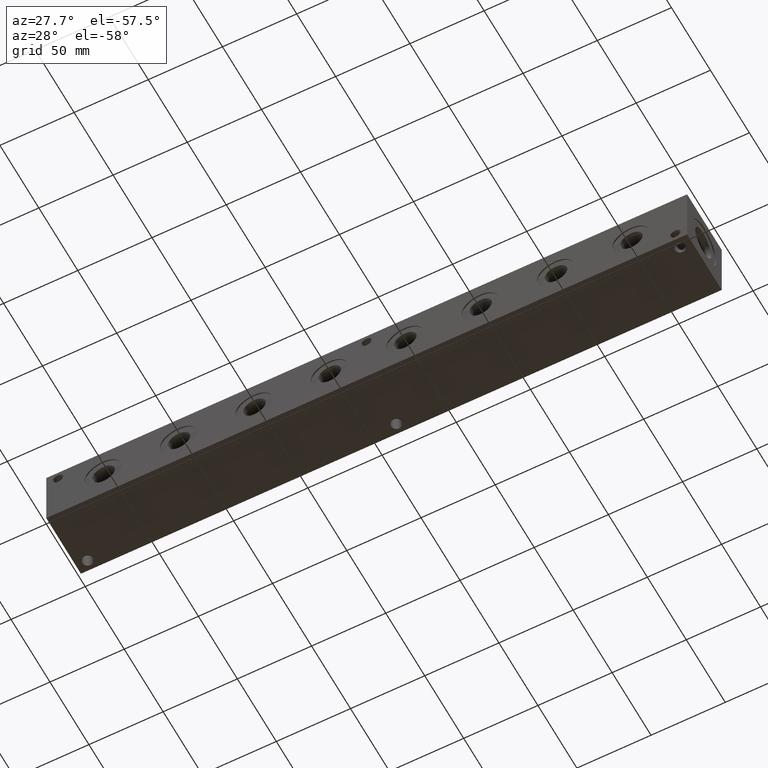
[diagram: clean part render]
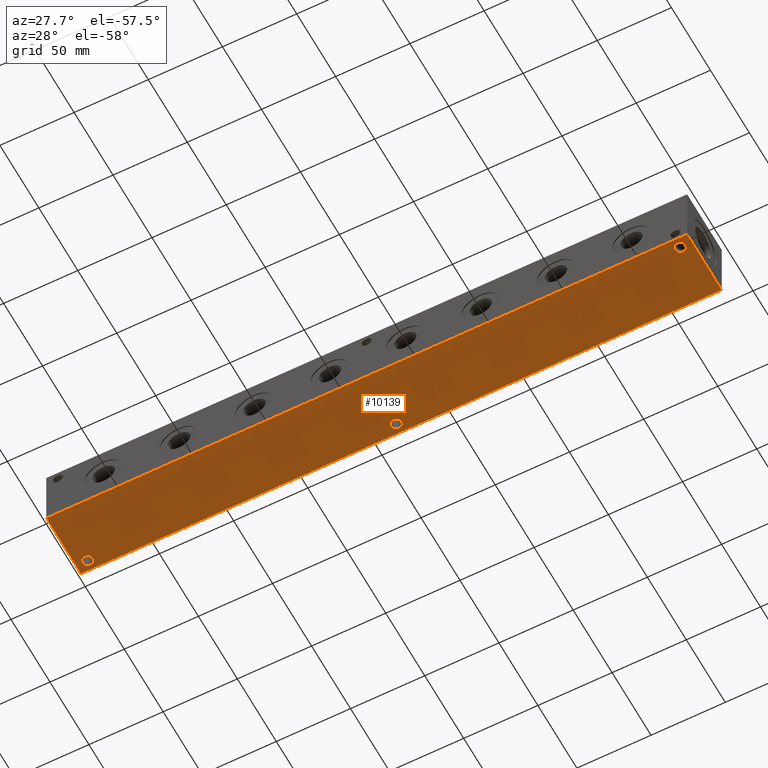
[diagram: same view with one face highlighted and labeled with its STEP entity id]
A machine part, auxiliary view. The second image highlights one B-rep face of the part: STEP entity #10139.
In plain terms, the highlighted planar face has unit normal (0, 0, 1).
Its self-contained STEP definition (entity closure, byte-faithful):
#383=CIRCLE('',#10664,3.5687);
#384=CIRCLE('',#10666,3.5687);
#385=CIRCLE('',#10668,3.5687);
#615=FACE_BOUND('',#1990,.T.);
#616=FACE_BOUND('',#1991,.T.);
#617=FACE_BOUND('',#1992,.T.);
#852=PLANE('',#10896);
#1374=FACE_OUTER_BOUND('',#1989,.T.);
#1989=EDGE_LOOP('',(#9170,#9171,#9172,#9173));
#1990=EDGE_LOOP('',(#9174));
#1991=EDGE_LOOP('',(#9175));
#1992=EDGE_LOOP('',(#9176));
#2757=LINE('',#18188,#3529);
#2760=LINE('',#18193,#3532);
#2762=LINE('',#18197,#3534);
#2764=LINE('',#18200,#3536);
#3529=VECTOR('',#13139,10.);
#3532=VECTOR('',#13144,10.);
#3534=VECTOR('',#13148,10.);
#3536=VECTOR('',#13152,10.);
#4700=VERTEX_POINT('',#17748);
#4701=VERTEX_POINT('',#17752);
#4702=VERTEX_POINT('',#17756);
#4841=VERTEX_POINT('',#18186);
#4842=VERTEX_POINT('',#18187);
#4843=VERTEX_POINT('',#18192);
#4844=VERTEX_POINT('',#18196);
#6074=EDGE_CURVE('',#4700,#4700,#383,.T.);
#6076=EDGE_CURVE('',#4701,#4701,#384,.T.);
#6078=EDGE_CURVE('',#4702,#4702,#385,.T.);
#6281=EDGE_CURVE('',#4841,#4842,#2757,.T.);
#6284=EDGE_CURVE('',#4843,#4841,#2760,.T.);
#6286=EDGE_CURVE('',#4844,#4843,#2762,.T.);
#6288=EDGE_CURVE('',#4842,#4844,#2764,.T.);
#9170=ORIENTED_EDGE('',*,*,#6288,.F.);
#9171=ORIENTED_EDGE('',*,*,#6281,.F.);
#9172=ORIENTED_EDGE('',*,*,#6284,.F.);
#9173=ORIENTED_EDGE('',*,*,#6286,.F.);
#9174=ORIENTED_EDGE('',*,*,#6074,.T.);
#9175=ORIENTED_EDGE('',*,*,#6076,.T.);
#9176=ORIENTED_EDGE('',*,*,#6078,.T.);
#10139=ADVANCED_FACE('',(#1374,#615,#616,#617),#852,.F.);
#10664=AXIS2_PLACEMENT_3D('',#17750,#12615,#12616);
#10666=AXIS2_PLACEMENT_3D('',#17754,#12620,#12621);
#10668=AXIS2_PLACEMENT_3D('',#17758,#12625,#12626);
#10896=AXIS2_PLACEMENT_3D('',#18202,#13155,#13156);
#12615=DIRECTION('center_axis',(0.,0.,1.));
#12616=DIRECTION('ref_axis',(1.,0.,0.));
#12620=DIRECTION('center_axis',(0.,0.,1.));
#12621=DIRECTION('ref_axis',(1.,0.,0.));
#12625=DIRECTION('center_axis',(0.,0.,1.));
#12626=DIRECTION('ref_axis',(1.,0.,0.));
#13139=DIRECTION('',(0.,-1.,0.));
#13144=DIRECTION('',(-1.,0.,0.));
#13148=DIRECTION('',(0.,1.,0.));
#13152=DIRECTION('',(1.,0.,0.));
#13155=DIRECTION('center_axis',(0.,0.,1.));
#13156=DIRECTION('ref_axis',(1.,0.,0.));
#17748=CARTESIAN_POINT('',(420.3065,6.35,0.));
#17750=CARTESIAN_POINT('Origin',(423.8752,6.35,0.));
#17752=CARTESIAN_POINT('',(4.3561,38.1,0.));
#17754=CARTESIAN_POINT('Origin',(7.9248,38.1,0.));
#17756=CARTESIAN_POINT('',(212.3313,38.1,0.));
#17758=CARTESIAN_POINT('Origin',(215.9,38.1,0.));
#18186=CARTESIAN_POINT('',(0.,44.45,0.));
#18187=CARTESIAN_POINT('',(0.,0.,0.));
#18188=CARTESIAN_POINT('',(0.,44.45,0.));
#18192=CARTESIAN_POINT('',(431.8,44.45,0.));
#18193=CARTESIAN_POINT('',(431.8,44.45,0.));
#18196=CARTESIAN_POINT('',(431.8,0.,0.));
#18197=CARTESIAN_POINT('',(431.8,0.,0.));
#18200=CARTESIAN_POINT('',(0.,0.,0.));
#18202=CARTESIAN_POINT('Origin',(215.9,22.225,0.));